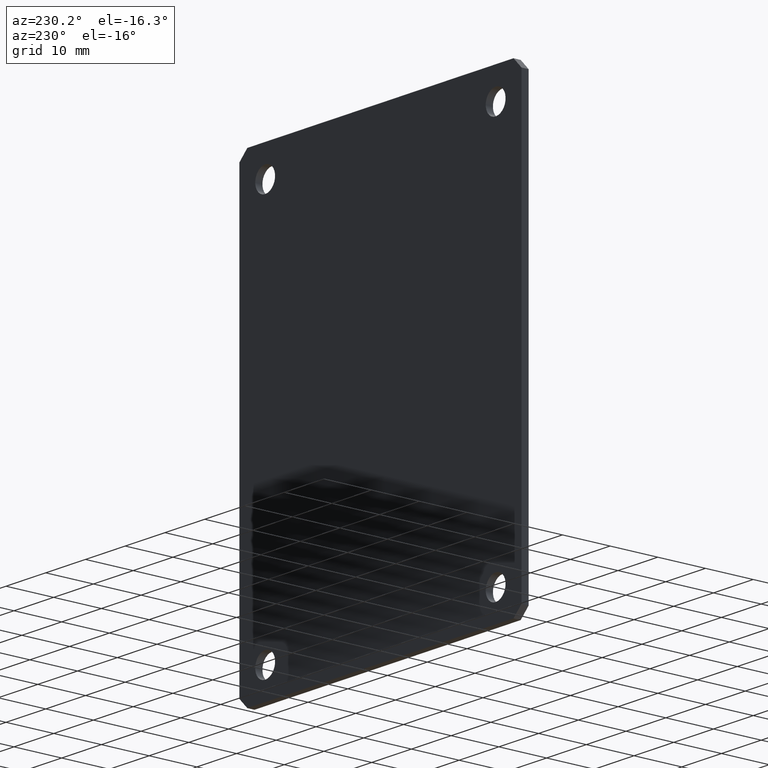
[diagram: clean part render]
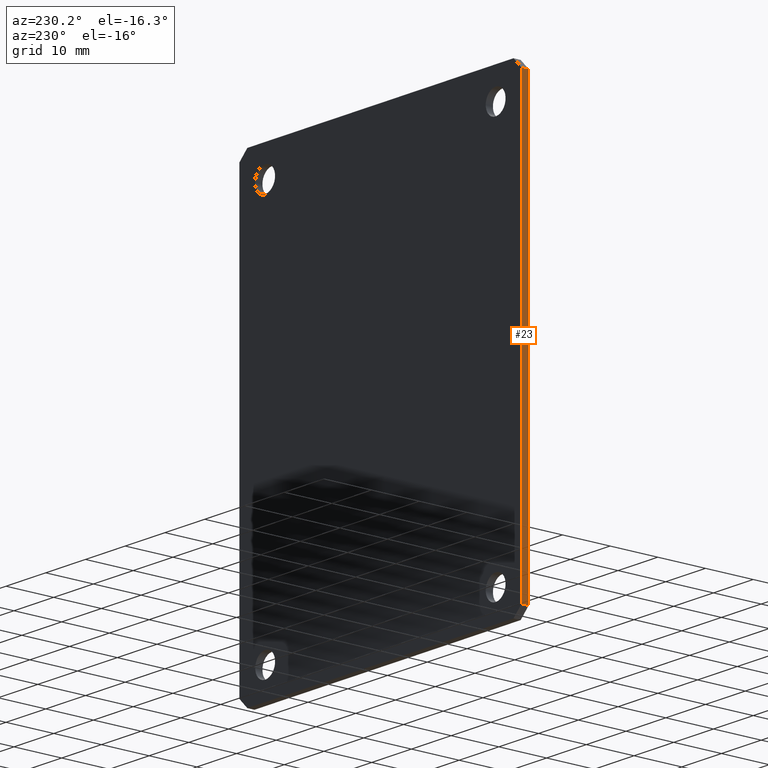
[diagram: same view with one face highlighted and labeled with its STEP entity id]
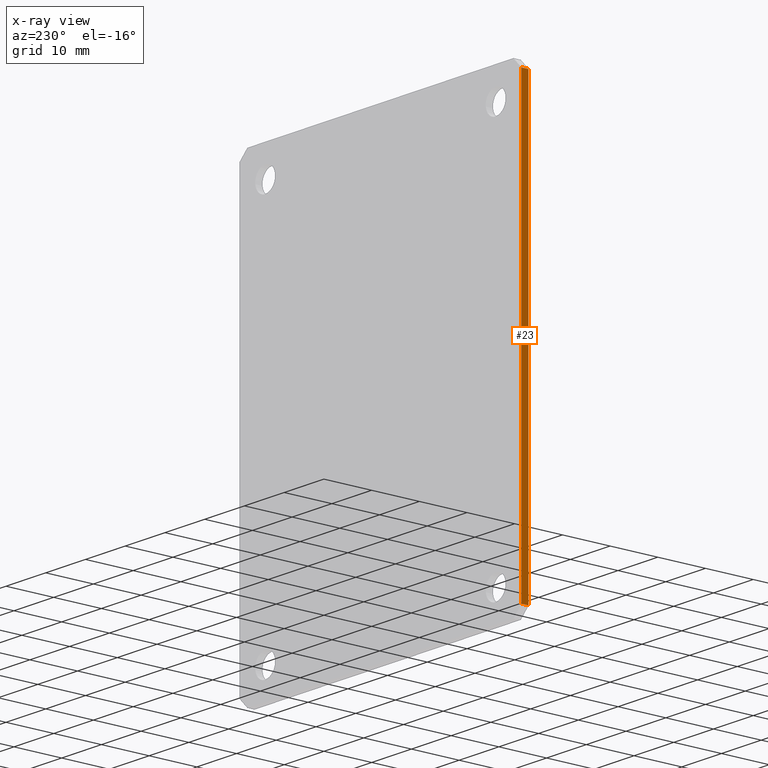
[diagram: x-ray of the same camera — body ghosted, the highlighted face saturated]
A machine part, auxiliary view. The second image highlights one B-rep face of the part: STEP entity #23.
The next image is the same camera in x-ray: the body ghosted, the highlighted face saturated — about 0% of this face is hidden behind the body in this view.
In plain terms, the highlighted planar face has unit normal (1, 0, 0).
Its self-contained STEP definition (entity closure, byte-faithful):
#13 = VERTEX_POINT ( 'NONE', #396 ) ;
#23 = ADVANCED_FACE ( 'NONE', ( #402 ), #401, .F. ) ;
#31 = EDGE_CURVE ( 'NONE', #144, #140, #517, .T. ) ;
#38 = EDGE_CURVE ( 'NONE', #140, #13, #505, .T. ) ;
#123 = ORIENTED_EDGE ( 'NONE', *, *, #31, .T. ) ;
#127 = ORIENTED_EDGE ( 'NONE', *, *, #129, .F. ) ;
#128 = ORIENTED_EDGE ( 'NONE', *, *, #146, .F. ) ;
#129 = EDGE_CURVE ( 'NONE', #147, #13, #599, .T. ) ;
#131 = EDGE_LOOP ( 'NONE', ( #132, #127, #128, #123 ) ) ;
#132 = ORIENTED_EDGE ( 'NONE', *, *, #38, .T. ) ;
#140 = VERTEX_POINT ( 'NONE', #585 ) ;
#144 = VERTEX_POINT ( 'NONE', #580 ) ;
#146 = EDGE_CURVE ( 'NONE', #144, #147, #579, .T. ) ;
#147 = VERTEX_POINT ( 'NONE', #575 ) ;
#396 = CARTESIAN_POINT ( 'NONE',  ( -35.50000000000000000, 0.0000000000000000000, 44.99999999999996400 ) ) ;
#401 = PLANE ( 'NONE',  #537 ) ;
#402 = FACE_OUTER_BOUND ( 'NONE', #131, .T. ) ;
#502 = DIRECTION ( 'NONE',  ( 0.0000000000000000000, 0.0000000000000000000, 1.000000000000000000 ) ) ;
#503 = VECTOR ( 'NONE', #502, 1000.000000000000000 ) ;
#504 = CARTESIAN_POINT ( 'NONE',  ( -35.50000000000000000, 0.0000000000000000000, -44.99999999999996400 ) ) ;
#505 = LINE ( 'NONE', #504, #503 ) ;
#511 = DIRECTION ( 'NONE',  ( -0.0000000000000000000, -1.000000000000000000, -0.0000000000000000000 ) ) ;
#512 = VECTOR ( 'NONE', #511, 1000.000000000000000 ) ;
#513 = CARTESIAN_POINT ( 'NONE',  ( -35.50000000000000000, 1.500000000000000000, -44.99999999999996400 ) ) ;
#517 = LINE ( 'NONE', #513, #512 ) ;
#534 = DIRECTION ( 'NONE',  ( 0.0000000000000000000, 0.0000000000000000000, -1.000000000000000000 ) ) ;
#535 = DIRECTION ( 'NONE',  ( 1.000000000000000000, 0.0000000000000000000, 0.0000000000000000000 ) ) ;
#536 = CARTESIAN_POINT ( 'NONE',  ( -35.50000000000000000, 1.500000000000000000, -44.99999999999996400 ) ) ;
#537 = AXIS2_PLACEMENT_3D ( 'NONE', #536, #535, #534 ) ;
#575 = CARTESIAN_POINT ( 'NONE',  ( -35.50000000000000000, 1.500000000000000000, 44.99999999999996400 ) ) ;
#576 = DIRECTION ( 'NONE',  ( 0.0000000000000000000, 0.0000000000000000000, 1.000000000000000000 ) ) ;
#577 = VECTOR ( 'NONE', #576, 1000.000000000000000 ) ;
#578 = CARTESIAN_POINT ( 'NONE',  ( -35.50000000000000000, 1.500000000000000000, -44.99999999999996400 ) ) ;
#579 = LINE ( 'NONE', #578, #577 ) ;
#580 = CARTESIAN_POINT ( 'NONE',  ( -35.50000000000000000, 1.500000000000000000, -44.99999999999996400 ) ) ;
#585 = CARTESIAN_POINT ( 'NONE',  ( -35.50000000000000000, 0.0000000000000000000, -44.99999999999996400 ) ) ;
#596 = DIRECTION ( 'NONE',  ( -0.0000000000000000000, -1.000000000000000000, -0.0000000000000000000 ) ) ;
#597 = VECTOR ( 'NONE', #596, 1000.000000000000000 ) ;
#598 = CARTESIAN_POINT ( 'NONE',  ( -35.50000000000000000, 1.500000000000000000, 44.99999999999996400 ) ) ;
#599 = LINE ( 'NONE', #598, #597 ) ;